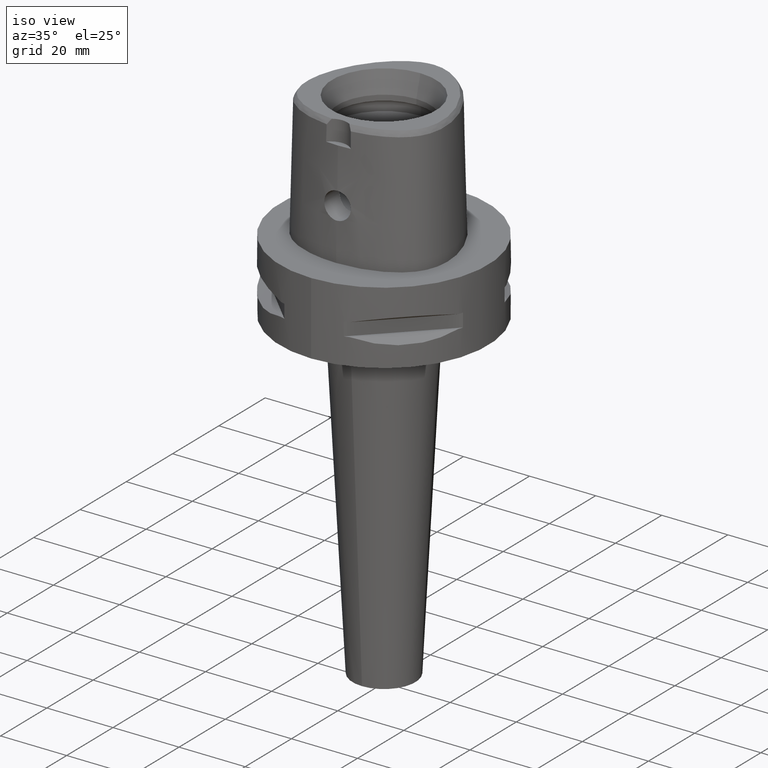
[diagram: clean part render]
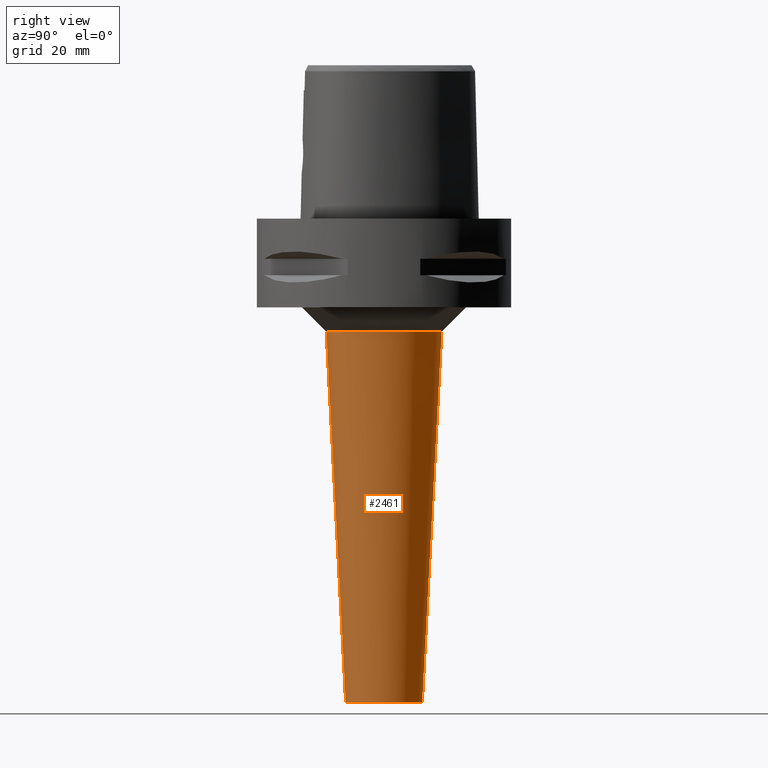
[diagram: tour spotlight — one face highlighted and labeled with its STEP entity id]
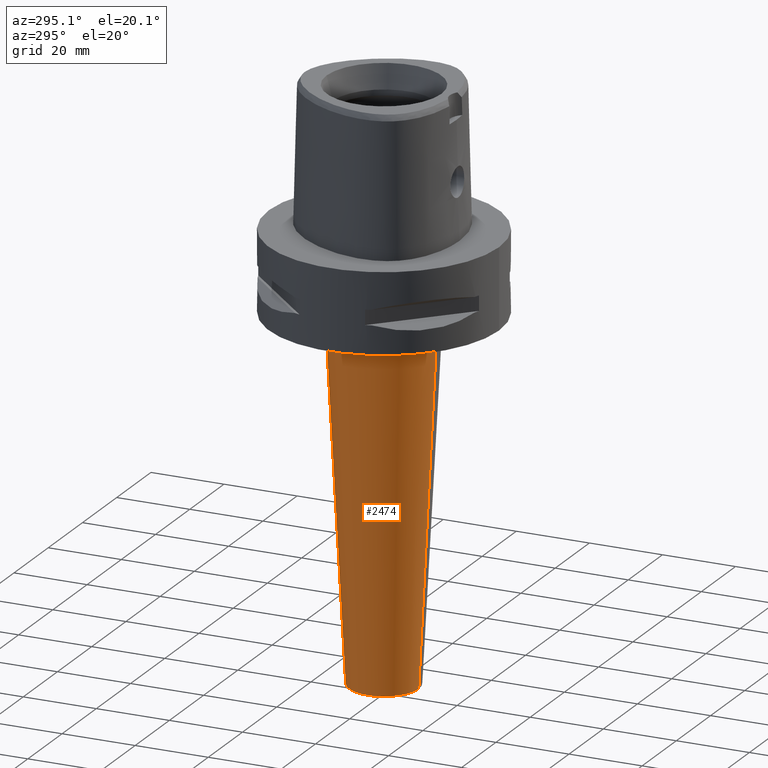
[diagram: tour spotlight — one face highlighted and labeled with its STEP entity id]
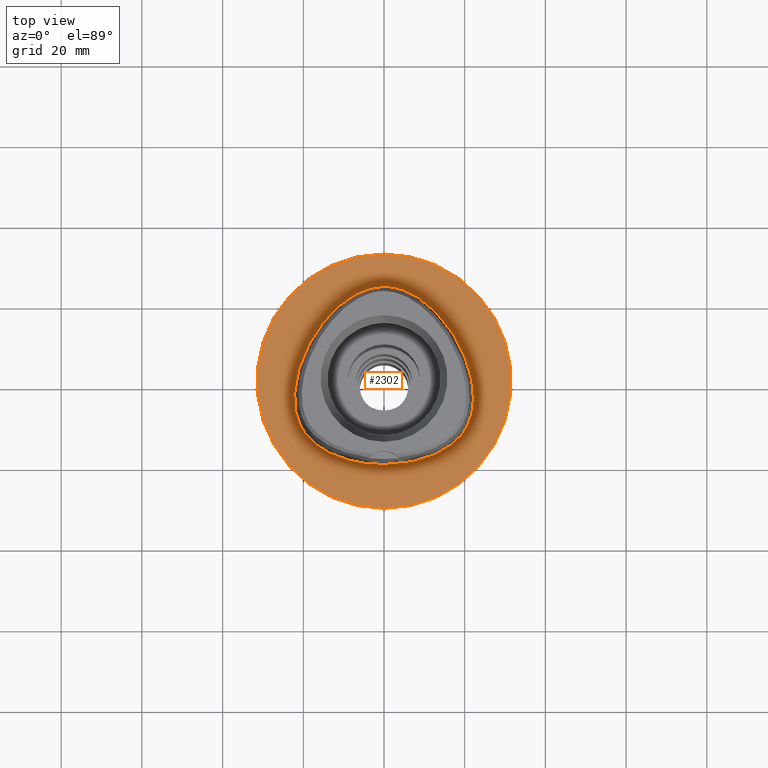
[diagram: tour spotlight — one face highlighted and labeled with its STEP entity id]
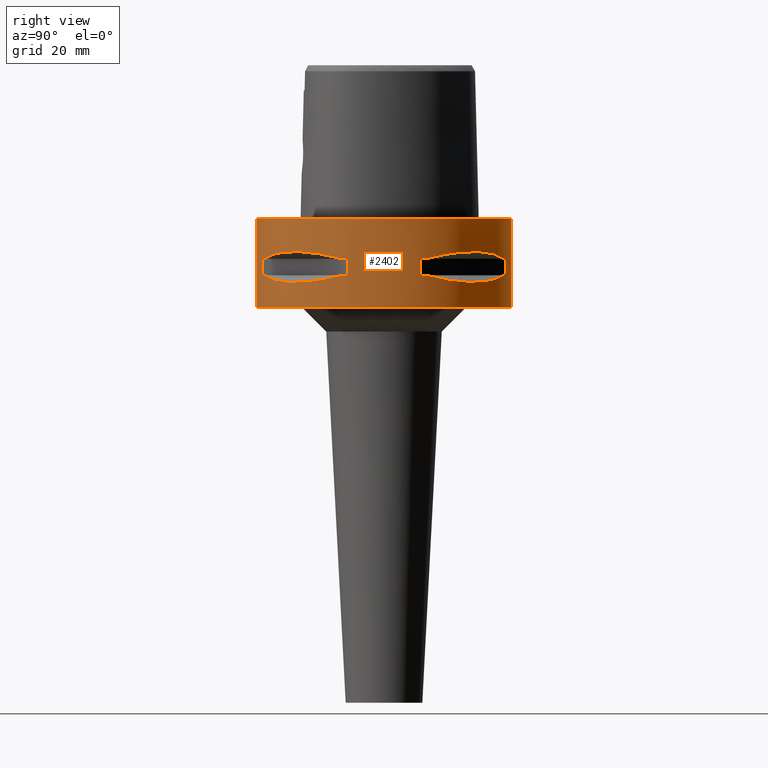
[diagram: tour spotlight — one face highlighted and labeled with its STEP entity id]
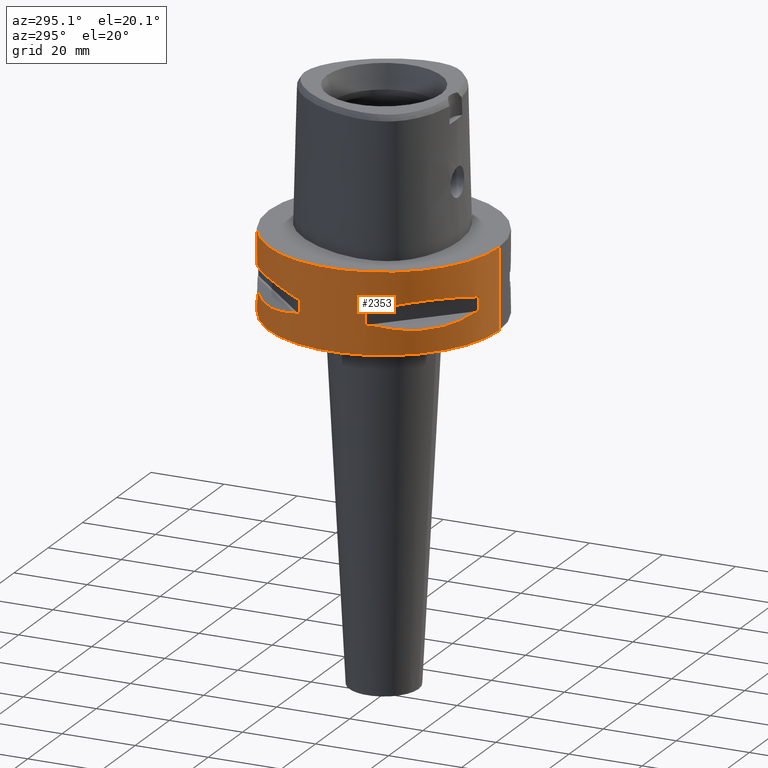
[diagram: tour spotlight — one face highlighted and labeled with its STEP entity id]
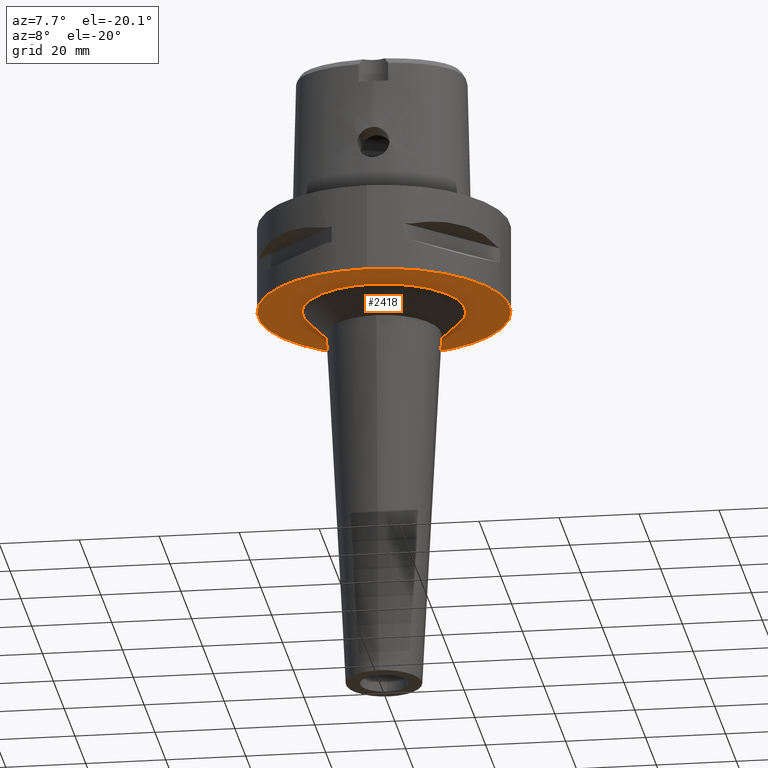
[diagram: tour spotlight — one face highlighted and labeled with its STEP entity id]
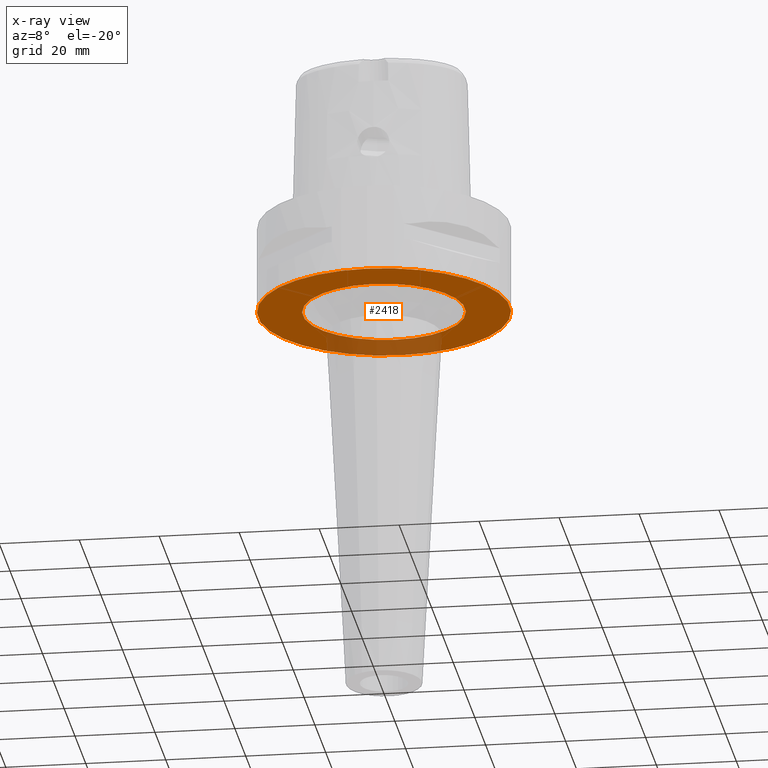
[diagram: x-ray of the same camera — body ghosted, this tour face saturated]
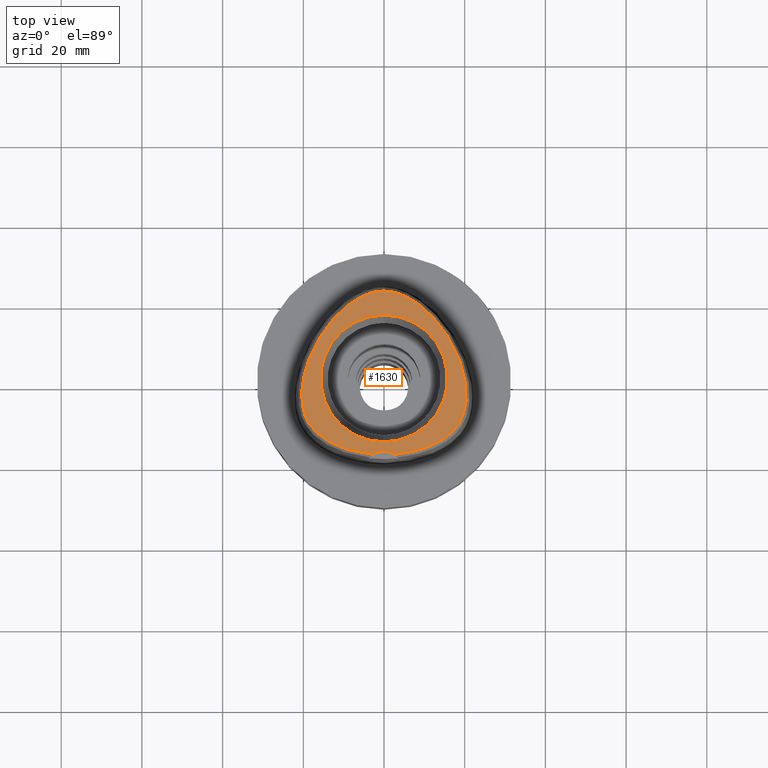
[diagram: tour spotlight — one face highlighted and labeled with its STEP entity id]
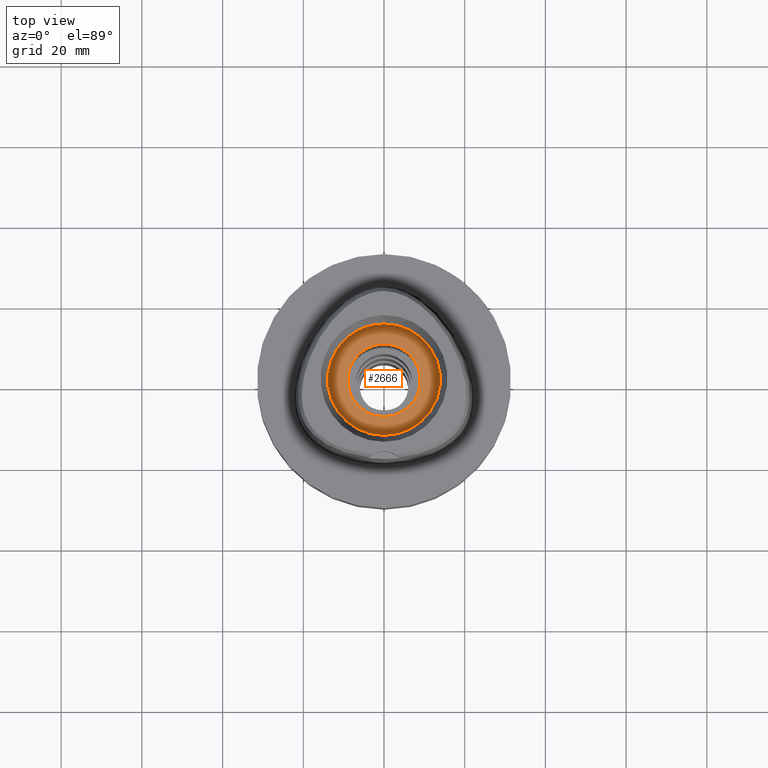
[diagram: tour spotlight — one face highlighted and labeled with its STEP entity id]
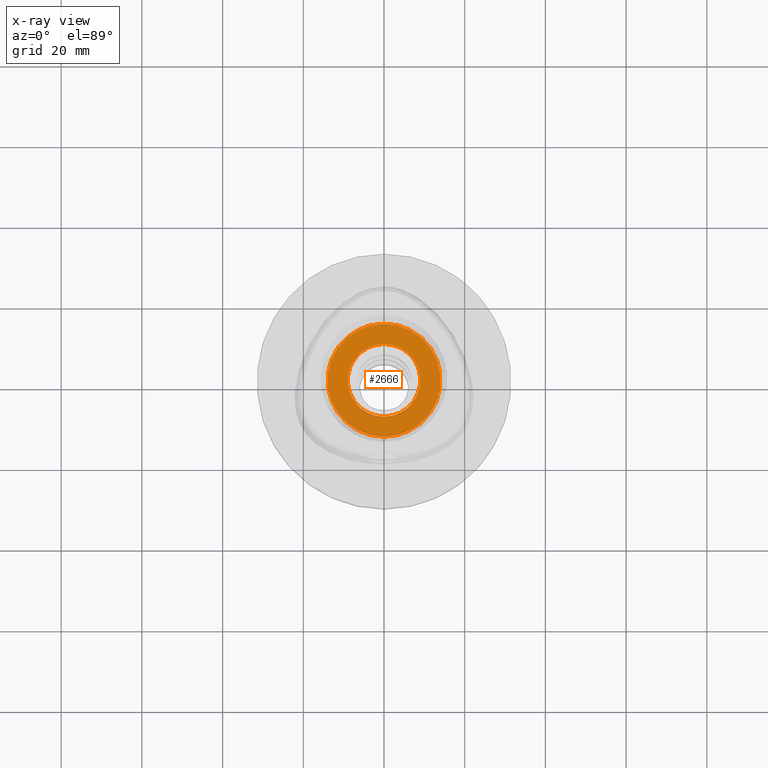
[diagram: x-ray of the same camera — body ghosted, this tour face saturated]
A machine part: a face-by-face anatomy tour. The part has 65 B-rep faces; the first image is the clean iso view, then the 8 largest visible faces are spotlighted one at a time (largest first), each with its STEP entity span.

Face 1 — right view, entity #2461. In plain terms, the highlighted conical surface has half-angle 3 deg.
Definition (entity closure, byte-faithful):
#596=DIRECTION('',(0.E0,-5.233595624294E-2,-9.986295347546E-1));
#597=VECTOR('',#596,9.212625583181E1);
#598=CARTESIAN_POINT('',(0.E0,1.432151569404E1,-2.8E1));
#599=LINE('',#598,#597);
#603=CARTESIAN_POINT('',(0.E0,0.E0,-2.8E1));
#604=DIRECTION('',(0.E0,0.E0,1.E0));
#605=DIRECTION('',(0.E0,-1.E0,0.E0));
#606=AXIS2_PLACEMENT_3D('',#603,#604,#605);
#611=DIRECTION('',(0.E0,5.233595624294E-2,-9.986295347546E-1));
#612=VECTOR('',#611,9.212625583181E1);
#613=CARTESIAN_POINT('',(0.E0,-1.432151569404E1,-2.8E1));
#614=LINE('',#613,#612);
#618=CARTESIAN_POINT('',(0.E0,0.E0,-1.2E2));
#619=DIRECTION('',(0.E0,0.E0,1.E0));
#620=DIRECTION('',(0.E0,-1.E0,0.E0));
#621=AXIS2_PLACEMENT_3D('',#618,#619,#620);
#1536=CARTESIAN_POINT('',(0.E0,1.432151569404E1,-2.8E1));
#1537=VERTEX_POINT('',#1536);
#1538=CARTESIAN_POINT('',(0.E0,-1.432151569404E1,-2.8E1));
#1539=VERTEX_POINT('',#1538);
#1540=CARTESIAN_POINT('',(0.E0,9.5E0,-1.2E2));
#1541=VERTEX_POINT('',#1540);
#1542=CARTESIAN_POINT('',(0.E0,-9.5E0,-1.2E2));
#1543=VERTEX_POINT('',#1542);
#2447=CARTESIAN_POINT('',(0.E0,0.E0,-7.4E1));
#2448=DIRECTION('',(0.E0,0.E0,1.E0));
#2449=DIRECTION('',(0.E0,1.E0,0.E0));
#2450=AXIS2_PLACEMENT_3D('',#2447,#2448,#2449);
#2451=CONICAL_SURFACE('',#2450,1.191075784702E1,3.E0);
#2453=ORIENTED_EDGE('',*,*,#2452,.T.);
#2455=ORIENTED_EDGE('',*,*,#2454,.F.);
#2457=ORIENTED_EDGE('',*,*,#2456,.F.);
#2458=ORIENTED_EDGE('',*,*,#2440,.T.);
#2459=EDGE_LOOP('',(#2453,#2455,#2457,#2458));
#2460=FACE_OUTER_BOUND('',#2459,.F.);
#607=CIRCLE('',#606,1.432151569404E1);
#622=CIRCLE('',#621,9.5E0);
#2440=EDGE_CURVE('',#1539,#1537,#607,.T.);
#2452=EDGE_CURVE('',#1537,#1541,#599,.T.);
#2454=EDGE_CURVE('',#1543,#1541,#622,.T.);
#2456=EDGE_CURVE('',#1539,#1543,#614,.T.);
#2461=ADVANCED_FACE('',(#2460),#2451,.T.);

Face 2 — auxiliary view, entity #2474. In plain terms, the highlighted conical surface has half-angle 3 deg.
Definition (entity closure, byte-faithful):
#581=CARTESIAN_POINT('',(0.E0,0.E0,-2.8E1));
#582=DIRECTION('',(0.E0,0.E0,-1.E0));
#583=DIRECTION('',(0.E0,-1.E0,0.E0));
#584=AXIS2_PLACEMENT_3D('',#581,#582,#583);
#596=DIRECTION('',(0.E0,-5.233595624294E-2,-9.986295347546E-1));
#597=VECTOR('',#596,9.212625583181E1);
#598=CARTESIAN_POINT('',(0.E0,1.432151569404E1,-2.8E1));
#599=LINE('',#598,#597);
#611=DIRECTION('',(0.E0,5.233595624294E-2,-9.986295347546E-1));
#612=VECTOR('',#611,9.212625583181E1);
#613=CARTESIAN_POINT('',(0.E0,-1.432151569404E1,-2.8E1));
#614=LINE('',#613,#612);
#626=CARTESIAN_POINT('',(0.E0,0.E0,-1.2E2));
#627=DIRECTION('',(0.E0,0.E0,1.E0));
#628=DIRECTION('',(0.E0,1.E0,0.E0));
#629=AXIS2_PLACEMENT_3D('',#626,#627,#628);
#1536=CARTESIAN_POINT('',(0.E0,1.432151569404E1,-2.8E1));
#1537=VERTEX_POINT('',#1536);
#1538=CARTESIAN_POINT('',(0.E0,-1.432151569404E1,-2.8E1));
#1539=VERTEX_POINT('',#1538);
#1540=CARTESIAN_POINT('',(0.E0,9.5E0,-1.2E2));
#1541=VERTEX_POINT('',#1540);
#1542=CARTESIAN_POINT('',(0.E0,-9.5E0,-1.2E2));
#1543=VERTEX_POINT('',#1542);
#2462=CARTESIAN_POINT('',(0.E0,0.E0,-7.4E1));
#2463=DIRECTION('',(0.E0,0.E0,1.E0));
#2464=DIRECTION('',(0.E0,1.E0,0.E0));
#2465=AXIS2_PLACEMENT_3D('',#2462,#2463,#2464);
#2466=CONICAL_SURFACE('',#2465,1.191075784702E1,3.E0);
#2467=ORIENTED_EDGE('',*,*,#2452,.F.);
#2468=ORIENTED_EDGE('',*,*,#2429,.F.);
#2469=ORIENTED_EDGE('',*,*,#2456,.T.);
#2471=ORIENTED_EDGE('',*,*,#2470,.F.);
#2472=EDGE_LOOP('',(#2467,#2468,#2469,#2471));
#2473=FACE_OUTER_BOUND('',#2472,.F.);
#585=CIRCLE('',#584,1.432151569404E1);
#630=CIRCLE('',#629,9.5E0);
#2429=EDGE_CURVE('',#1539,#1537,#585,.T.);
#2452=EDGE_CURVE('',#1537,#1541,#599,.T.);
#2456=EDGE_CURVE('',#1539,#1543,#614,.T.);
#2470=EDGE_CURVE('',#1541,#1543,#630,.T.);
#2474=ADVANCED_FACE('',(#2473),#2466,.T.);

Face 3 — top view, entity #2302. In plain terms, the highlighted planar face has unit normal (0, 0, -1).
Definition (entity closure, byte-faithful):
#284=CARTESIAN_POINT('',(0.E0,1.298125607096E-14,0.E0));
#285=DIRECTION('',(0.E0,0.E0,-1.E0));
#286=DIRECTION('',(0.E0,-1.E0,0.E0));
#287=AXIS2_PLACEMENT_3D('',#284,#285,#286);
#292=CARTESIAN_POINT('',(0.E0,1.298125607096E-14,0.E0));
#293=DIRECTION('',(0.E0,0.E0,-1.E0));
#294=DIRECTION('',(0.E0,1.E0,0.E0));
#295=AXIS2_PLACEMENT_3D('',#292,#293,#294);
#300=CARTESIAN_POINT('',(-7.554098338496E-12,-2.0675E1,5.802765675374E-14));
#301=CARTESIAN_POINT('',(9.423976488155E-1,-2.0675E1,5.802765675374E-14));
#302=CARTESIAN_POINT('',(2.793376130496E0,-2.060121898341E1,
-2.693072922207E-14));
#303=CARTESIAN_POINT('',(5.508073925153E0,-2.027764424331E1,0.E0));
#304=CARTESIAN_POINT('',(8.041996448639E0,-1.976541898218E1,0.E0));
#305=CARTESIAN_POINT('',(1.034737627933E1,-1.909911630638E1,0.E0));
#306=CARTESIAN_POINT('',(1.239658963969E1,-1.831453968020E1,0.E0));
#307=CARTESIAN_POINT('',(1.418694441822E1,-1.744434665725E1,0.E0));
#308=CARTESIAN_POINT('',(1.573225785650E1,-1.651379946435E1,0.E0));
#309=CARTESIAN_POINT('',(1.705313052344E1,-1.554151025429E1,0.E0));
#310=CARTESIAN_POINT('',(1.817388257844E1,-1.453902729280E1,0.E0));
#311=CARTESIAN_POINT('',(1.911891272271E1,-1.350974485467E1,0.E0));
#312=CARTESIAN_POINT('',(1.990146256093E1,-1.246481285694E1,0.E0));
#313=CARTESIAN_POINT('',(2.055285293415E1,-1.138079777910E1,0.E0));
#314=CARTESIAN_POINT('',(2.109925775097E1,-1.021351038987E1,0.E0));
#315=CARTESIAN_POINT('',(2.155091393640E1,-8.925976888341E0,0.E0));
#316=CARTESIAN_POINT('',(2.189689616524E1,-7.502520528071E0,0.E0));
#317=CARTESIAN_POINT('',(2.212256787027E1,-5.926491443589E0,0.E0));
#318=CARTESIAN_POINT('',(2.220771735646E1,-4.181470985909E0,0.E0));
#319=CARTESIAN_POINT('',(2.212713249782E1,-2.255944587063E0,0.E0));
#320=CARTESIAN_POINT('',(2.185240504158E1,-1.472618446542E-1,0.E0));
#321=CARTESIAN_POINT('',(2.135541226563E1,2.132648369099E0,0.E0));
#322=CARTESIAN_POINT('',(2.061444907364E1,4.550450910742E0,0.E0));
#323=CARTESIAN_POINT('',(1.962119436316E1,7.049507425535E0,0.E0));
#324=CARTESIAN_POINT('',(1.838889529103E1,9.549313604088E0,0.E0));
#325=CARTESIAN_POINT('',(1.695113881691E1,1.196337926030E1,0.E0));
#326=CARTESIAN_POINT('',(1.535472059642E1,1.421672847215E1,0.E0));
#327=CARTESIAN_POINT('',(1.366124595007E1,1.624188482830E1,0.E0));
#328=CARTESIAN_POINT('',(1.193203164444E1,1.799717625796E1,0.E0));
#329=CARTESIAN_POINT('',(1.021541912520E1,1.947089059358E1,0.E0));
#330=CARTESIAN_POINT('',(8.546165491836E0,2.067136251763E1,0.E0));
#331=CARTESIAN_POINT('',(6.943755701445E0,2.162065608947E1,0.E0));
#332=CARTESIAN_POINT('',(5.416271680727E0,2.234588874686E1,0.E0));
#333=CARTESIAN_POINT('',(3.963833922459E0,2.287421882732E1,0.E0));
#334=CARTESIAN_POINT('',(2.580913585919E0,2.322977851709E1,0.E0));
#335=CARTESIAN_POINT('',(1.261650265957E0,2.343215126304E1,
-2.559106284495E-14));
#336=CARTESIAN_POINT('',(4.145894550214E-1,2.347499999999E1,
5.514107688972E-14));
#337=CARTESIAN_POINT('',(4.563156641447E-11,2.347499999999E1,
5.514107688972E-14));
#342=CARTESIAN_POINT('',(4.563156641447E-11,2.347499999999E1,
5.514107688972E-14));
#343=CARTESIAN_POINT('',(-4.146852565207E-1,2.347499999999E1,
5.514107688972E-14));
#344=CARTESIAN_POINT('',(-1.261915149561E0,2.343213451227E1,
-2.559106284495E-14));
#345=CARTESIAN_POINT('',(-2.581460452462E0,2.322967044429E1,0.E0));
#346=CARTESIAN_POINT('',(-3.964403221928E0,2.287404406542E1,0.E0));
#347=CARTESIAN_POINT('',(-5.417034934790E0,2.234557740741E1,0.E0));
#348=CARTESIAN_POINT('',(-6.944801218035E0,2.162011250783E1,0.E0));
#349=CARTESIAN_POINT('',(-8.547637702665E0,2.067041451708E1,0.E0));
#350=CARTESIAN_POINT('',(-1.021725188597E1,1.946946503500E1,0.E0));
#351=CARTESIAN_POINT('',(-1.193424410327E1,1.799512566976E1,0.E0));
#352=CARTESIAN_POINT('',(-1.366368346013E1,1.623921716908E1,0.E0));
#353=CARTESIAN_POINT('',(-1.535729558670E1,1.421339154148E1,0.E0));
#354=CARTESIAN_POINT('',(-1.695352052941E1,1.195973010079E1,0.E0));
#355=CARTESIAN_POINT('',(-1.839120765518E1,9.545070948090E0,0.E0));
#356=CARTESIAN_POINT('',(-1.962307345157E1,7.045259246555E0,0.E0));
#357=CARTESIAN_POINT('',(-2.061579824793E1,4.546574757563E0,0.E0));
#358=CARTESIAN_POINT('',(-2.135626431495E1,2.129350844778E0,0.E0));
#359=CARTESIAN_POINT('',(-2.185285452040E1,-1.499599148027E-1,0.E0));
#360=CARTESIAN_POINT('',(-2.212727618345E1,-2.257747990068E0,0.E0));
#361=CARTESIAN_POINT('',(-2.220770549127E1,-4.183060399524E0,0.E0));
#362=CARTESIAN_POINT('',(-2.212245961432E1,-5.927659577005E0,0.E0));
#363=CARTESIAN_POINT('',(-2.189663652646E1,-7.503783103471E0,0.E0));
#364=CARTESIAN_POINT('',(-2.155071218654E1,-8.926832611984E0,0.E0));
#365=CARTESIAN_POINT('',(-2.109812849038E1,-1.021628808504E1,0.E0));
#366=CARTESIAN_POINT('',(-2.055277033994E1,-1.138063298656E1,0.E0));
#367=CARTESIAN_POINT('',(-1.990340162624E1,-1.246179278733E1,0.E0));
#368=CARTESIAN_POINT('',(-1.912185559762E1,-1.350622775472E1,0.E0));
#369=CARTESIAN_POINT('',(-1.817671397480E1,-1.453624124549E1,0.E0));
#370=CARTESIAN_POINT('',(-1.705680612492E1,-1.553852109048E1,0.E0));
#371=CARTESIAN_POINT('',(-1.573604956120E1,-1.651128824165E1,0.E0));
#372=CARTESIAN_POINT('',(-1.419106097246E1,-1.744213430450E1,0.E0));
#373=CARTESIAN_POINT('',(-1.240026832212E1,-1.831297475591E1,0.E0));
#374=CARTESIAN_POINT('',(-1.035075458277E1,-1.909801402975E1,0.E0));
#375=CARTESIAN_POINT('',(-8.044393403476E0,-1.976486427995E1,0.E0));
#376=CARTESIAN_POINT('',(-5.509742625065E0,-2.027740112967E1,0.E0));
#377=CARTESIAN_POINT('',(-2.794080716861E0,-2.060118766449E1,
-2.693072922207E-14));
#378=CARTESIAN_POINT('',(-9.426230636249E-1,-2.0675E1,5.802765675374E-14));
#379=CARTESIAN_POINT('',(-7.554098338496E-12,-2.0675E1,5.802765675374E-14));
#1466=VERTEX_POINT('',#342);
#1467=VERTEX_POINT('',#379);
#1472=CARTESIAN_POINT('',(0.E0,-3.15E1,0.E0));
#1473=CARTESIAN_POINT('',(0.E0,3.15E1,0.E0));
#1474=VERTEX_POINT('',#1472);
#1475=VERTEX_POINT('',#1473);
#2286=CARTESIAN_POINT('',(0.E0,1.224646799147E-14,0.E0));
#2287=DIRECTION('',(0.E0,0.E0,-1.E0));
#2288=DIRECTION('',(0.E0,-1.E0,0.E0));
#2289=AXIS2_PLACEMENT_3D('',#2286,#2287,#2288);
#2290=PLANE('',#2289);
#2292=ORIENTED_EDGE('',*,*,#2291,.T.);
#2294=ORIENTED_EDGE('',*,*,#2293,.T.);
#2295=EDGE_LOOP('',(#2292,#2294));
#2296=FACE_OUTER_BOUND('',#2295,.F.);
#2298=ORIENTED_EDGE('',*,*,#2297,.T.);
#2299=ORIENTED_EDGE('',*,*,#2269,.T.);
#2300=EDGE_LOOP('',(#2298,#2299));
#2301=FACE_BOUND('',#2300,.F.);
#288=CIRCLE('',#287,3.15E1);
#296=CIRCLE('',#295,3.15E1);
#338=B_SPLINE_CURVE_WITH_KNOTS('',3,(#300,#301,#302,#303,#304,#305,#306,#307,
#308,#309,#310,#311,#312,#313,#314,#315,#316,#317,#318,#319,#320,#321,#322,#323,
#324,#325,#326,#327,#328,#329,#330,#331,#332,#333,#334,#335,#336,#337),
.UNSPECIFIED.,.F.,.F.,(4,1,1,1,1,1,1,1,1,1,1,1,1,1,1,1,1,1,1,1,1,1,1,1,1,1,1,1,
1,1,1,1,1,1,1,4),(0.E0,2.857142857143E-2,5.714285714286E-2,8.571428571429E-2,
1.142857142857E-1,1.428571428571E-1,1.714285714286E-1,2.E-1,2.285714285714E-1,
2.571428571429E-1,2.857142857143E-1,3.142857142857E-1,3.428571428571E-1,
3.714285714286E-1,4.E-1,4.285714285714E-1,4.571428571429E-1,4.857142857143E-1,
5.142857142857E-1,5.428571428571E-1,5.714285714286E-1,6.E-1,6.285714285714E-1,
6.571428571429E-1,6.857142857143E-1,7.142857142857E-1,7.428571428571E-1,
7.714285714286E-1,8.E-1,8.285714285714E-1,8.571428571429E-1,8.857142857143E-1,
9.142857142857E-1,9.428571428571E-1,9.714285714286E-1,1.E0),.UNSPECIFIED.);
#380=B_SPLINE_CURVE_WITH_KNOTS('',3,(#342,#343,#344,#345,#346,#347,#348,#349,
#350,#351,#352,#353,#354,#355,#356,#357,#358,#359,#360,#361,#362,#363,#364,#365,
#366,#367,#368,#369,#370,#371,#372,#373,#374,#375,#376,#377,#378,#379),
.UNSPECIFIED.,.F.,.F.,(4,1,1,1,1,1,1,1,1,1,1,1,1,1,1,1,1,1,1,1,1,1,1,1,1,1,1,1,
1,1,1,1,1,1,1,4),(0.E0,2.857142857143E-2,5.714285714286E-2,8.571428571429E-2,
1.142857142857E-1,1.428571428571E-1,1.714285714286E-1,2.E-1,2.285714285714E-1,
2.571428571429E-1,2.857142857143E-1,3.142857142857E-1,3.428571428571E-1,
3.714285714286E-1,4.E-1,4.285714285714E-1,4.571428571429E-1,4.857142857143E-1,
5.142857142857E-1,5.428571428571E-1,5.714285714286E-1,6.E-1,6.285714285714E-1,
6.571428571429E-1,6.857142857143E-1,7.142857142857E-1,7.428571428571E-1,
7.714285714286E-1,8.E-1,8.285714285714E-1,8.571428571429E-1,8.857142857143E-1,
9.142857142857E-1,9.428571428571E-1,9.714285714286E-1,1.E0),.UNSPECIFIED.);
#2269=EDGE_CURVE('',#1466,#1467,#380,.T.);
#2291=EDGE_CURVE('',#1474,#1475,#288,.T.);
#2293=EDGE_CURVE('',#1475,#1474,#296,.T.);
#2297=EDGE_CURVE('',#1467,#1466,#338,.T.);
#2302=ADVANCED_FACE('',(#2296,#2301),#2290,.F.);

Face 4 — right view, entity #2402. In plain terms, the highlighted cylindrical surface (partial cylindrical patch) has radius 31.5 mm, axis along (0, 0, -1).
Definition (entity closure, byte-faithful):
#292=CARTESIAN_POINT('',(0.E0,1.298125607096E-14,0.E0));
#293=DIRECTION('',(0.E0,0.E0,-1.E0));
#294=DIRECTION('',(0.E0,1.E0,0.E0));
#295=AXIS2_PLACEMENT_3D('',#292,#293,#294);
#384=DIRECTION('',(0.E0,0.E0,-1.E0));
#385=VECTOR('',#384,2.2E1);
#386=CARTESIAN_POINT('',(0.E0,-3.15E1,0.E0));
#387=LINE('',#386,#385);
#463=DIRECTION('',(0.E0,0.E0,-1.E0));
#464=VECTOR('',#463,2.2E1);
#465=CARTESIAN_POINT('',(0.E0,3.15E1,0.E0));
#466=LINE('',#465,#464);
#470=CARTESIAN_POINT('',(2.971690375018E1,-1.044775724750E1,-9.950000000001E0));
#471=CARTESIAN_POINT('',(2.888151197365E1,-1.282388988809E1,-9.320995176200E0));
#472=CARTESIAN_POINT('',(2.674739463903E1,-1.711282138769E1,-8.441295977077E0));
#473=CARTESIAN_POINT('',(2.244574140438E1,-2.244574140438E1,-8.020283076297E0));
#474=CARTESIAN_POINT('',(1.711282138769E1,-2.674739463903E1,-8.441295977077E0));
#475=CARTESIAN_POINT('',(1.282388988809E1,-2.888151197365E1,-9.320995176200E0));
#476=CARTESIAN_POINT('',(1.044775724750E1,-2.971690375018E1,-9.950000000001E0));
#481=DIRECTION('',(0.E0,0.E0,-1.E0));
#482=VECTOR('',#481,4.1E0);
#483=CARTESIAN_POINT('',(8.981198972017E0,-3.019251670572E1,-9.95E0));
#484=LINE('',#483,#482);
#488=CARTESIAN_POINT('',(1.044775724750E1,-2.971690375018E1,-1.405E1));
#489=CARTESIAN_POINT('',(1.282388988809E1,-2.888151197365E1,-1.467900482380E1));
#490=CARTESIAN_POINT('',(1.711282138769E1,-2.674739463903E1,-1.555870402293E1));
#491=CARTESIAN_POINT('',(2.244574140438E1,-2.244574140438E1,-1.597971692371E1));
#492=CARTESIAN_POINT('',(2.674739463903E1,-1.711282138769E1,-1.555870402293E1));
#493=CARTESIAN_POINT('',(2.888151197365E1,-1.282388988809E1,-1.467900482380E1));
#494=CARTESIAN_POINT('',(2.971690375018E1,-1.044775724750E1,-1.405E1));
#499=DIRECTION('',(0.E0,0.E0,1.E0));
#500=VECTOR('',#499,4.1E0);
#501=CARTESIAN_POINT('',(3.019251670572E1,-8.981198972017E0,-1.405E1));
#502=LINE('',#501,#500);
#506=CARTESIAN_POINT('',(1.044775724750E1,2.971690375018E1,-9.950000000001E0));
#507=CARTESIAN_POINT('',(1.282388988809E1,2.888151197365E1,-9.320995176200E0));
#508=CARTESIAN_POINT('',(1.711282138769E1,2.674739463903E1,-8.441295977077E0));
#509=CARTESIAN_POINT('',(2.244574140438E1,2.244574140438E1,-8.020283076297E0));
#510=CARTESIAN_POINT('',(2.674739463903E1,1.711282138769E1,-8.441295977077E0));
#511=CARTESIAN_POINT('',(2.888151197365E1,1.282388988809E1,-9.320995176200E0));
#512=CARTESIAN_POINT('',(2.971690375018E1,1.044775724750E1,-9.950000000001E0));
#517=DIRECTION('',(0.E0,0.E0,-1.E0));
#518=VECTOR('',#517,4.1E0);
#519=CARTESIAN_POINT('',(3.019251670572E1,8.981198972017E0,-9.95E0));
#520=LINE('',#519,#518);
#524=CARTESIAN_POINT('',(2.971690375018E1,1.044775724750E1,-1.405E1));
#525=CARTESIAN_POINT('',(2.888151197365E1,1.282388988809E1,-1.467900482380E1));
#526=CARTESIAN_POINT('',(2.674739463903E1,1.711282138769E1,-1.555870402293E1));
#527=CARTESIAN_POINT('',(2.244574140438E1,2.244574140438E1,-1.597971692371E1));
#528=CARTESIAN_POINT('',(1.711282138769E1,2.674739463903E1,-1.555870402293E1));
#529=CARTESIAN_POINT('',(1.282388988809E1,2.888151197365E1,-1.467900482380E1));
#530=CARTESIAN_POINT('',(1.044775724750E1,2.971690375018E1,-1.405E1));
#535=DIRECTION('',(0.E0,0.E0,1.E0));
#536=VECTOR('',#535,4.1E0);
#537=CARTESIAN_POINT('',(8.981198972017E0,3.019251670572E1,-1.405E1));
#538=LINE('',#537,#536);
#542=CARTESIAN_POINT('',(0.E0,1.298125607096E-14,-2.2E1));
#543=DIRECTION('',(0.E0,0.E0,1.E0));
#544=DIRECTION('',(0.E0,-1.E0,0.E0));
#545=AXIS2_PLACEMENT_3D('',#542,#543,#544);
#1206=CARTESIAN_POINT('',(0.E0,1.298125607096E-14,-9.95E0));
#1207=DIRECTION('',(0.E0,0.E0,1.E0));
#1208=DIRECTION('',(9.433937698469E-1,-3.316748332541E-1,0.E0));
#1209=AXIS2_PLACEMENT_3D('',#1206,#1207,#1208);
#1214=CARTESIAN_POINT('',(0.E0,1.298125607096E-14,-9.95E0));
#1215=DIRECTION('',(0.E0,0.E0,1.E0));
#1216=DIRECTION('',(2.851174276832E-1,-9.584925938323E-1,0.E0));
#1217=AXIS2_PLACEMENT_3D('',#1214,#1215,#1216);
#1236=CARTESIAN_POINT('',(0.E0,1.298125607096E-14,-1.405E1));
#1237=DIRECTION('',(0.E0,0.E0,-1.E0));
#1238=DIRECTION('',(9.584925938323E-1,-2.851174276832E-1,0.E0));
#1239=AXIS2_PLACEMENT_3D('',#1236,#1237,#1238);
#1244=CARTESIAN_POINT('',(0.E0,1.298125607096E-14,-1.405E1));
#1245=DIRECTION('',(0.E0,0.E0,-1.E0));
#1246=DIRECTION('',(3.316748332541E-1,-9.433937698469E-1,0.E0));
#1247=AXIS2_PLACEMENT_3D('',#1244,#1245,#1246);
#1266=CARTESIAN_POINT('',(0.E0,1.298125607096E-14,-9.95E0));
#1267=DIRECTION('',(0.E0,0.E0,1.E0));
#1268=DIRECTION('',(3.316748332541E-1,9.433937698469E-1,0.E0));
#1269=AXIS2_PLACEMENT_3D('',#1266,#1267,#1268);
#1274=CARTESIAN_POINT('',(0.E0,1.298125607096E-14,-9.95E0));
#1275=DIRECTION('',(0.E0,0.E0,1.E0));
#1276=DIRECTION('',(9.584925938323E-1,2.851174276832E-1,0.E0));
#1277=AXIS2_PLACEMENT_3D('',#1274,#1275,#1276);
#1296=CARTESIAN_POINT('',(0.E0,1.298125607096E-14,-1.405E1));
#1297=DIRECTION('',(0.E0,0.E0,-1.E0));
#1298=DIRECTION('',(2.851174276832E-1,9.584925938323E-1,0.E0));
#1299=AXIS2_PLACEMENT_3D('',#1296,#1297,#1298);
#1304=CARTESIAN_POINT('',(0.E0,1.298125607096E-14,-1.405E1));
#1305=DIRECTION('',(0.E0,0.E0,-1.E0));
#1306=DIRECTION('',(9.433937698469E-1,3.316748332541E-1,0.E0));
#1307=AXIS2_PLACEMENT_3D('',#1304,#1305,#1306);
#1472=CARTESIAN_POINT('',(0.E0,-3.15E1,0.E0));
#1473=CARTESIAN_POINT('',(0.E0,3.15E1,0.E0));
#1474=VERTEX_POINT('',#1472);
#1475=VERTEX_POINT('',#1473);
#1476=CARTESIAN_POINT('',(0.E0,3.15E1,-2.2E1));
#1477=VERTEX_POINT('',#1476);
#1478=CARTESIAN_POINT('',(0.E0,-3.15E1,-2.2E1));
#1479=VERTEX_POINT('',#1478);
#1506=VERTEX_POINT('',#470);
#1507=VERTEX_POINT('',#476);
#1508=CARTESIAN_POINT('',(8.981198972020E0,-3.019251670572E1,-9.95E0));
#1509=VERTEX_POINT('',#1508);
#1510=CARTESIAN_POINT('',(8.981198972017E0,-3.019251670572E1,-1.405E1));
#1511=VERTEX_POINT('',#1510);
#1512=CARTESIAN_POINT('',(1.044775724750E1,-2.971690375018E1,-1.405E1));
#1513=VERTEX_POINT('',#1512);
#1514=VERTEX_POINT('',#494);
#1515=CARTESIAN_POINT('',(3.019251670572E1,-8.981198972020E0,-1.405E1));
#1516=VERTEX_POINT('',#1515);
#1517=CARTESIAN_POINT('',(3.019251670572E1,-8.981198972017E0,-9.95E0));
#1518=VERTEX_POINT('',#1517);
#1519=VERTEX_POINT('',#506);
#1520=VERTEX_POINT('',#512);
#1521=CARTESIAN_POINT('',(3.019251670572E1,8.981198972020E0,-9.95E0));
#1522=VERTEX_POINT('',#1521);
#1523=CARTESIAN_POINT('',(3.019251670572E1,8.981198972017E0,-1.405E1));
#1524=VERTEX_POINT('',#1523);
#1525=CARTESIAN_POINT('',(2.971690375018E1,1.044775724750E1,-1.405E1));
#1526=VERTEX_POINT('',#1525);
#1527=VERTEX_POINT('',#530);
#1528=CARTESIAN_POINT('',(8.981198972020E0,3.019251670572E1,-1.405E1));
#1529=VERTEX_POINT('',#1528);
#1530=CARTESIAN_POINT('',(8.981198972017E0,3.019251670572E1,-9.95E0));
#1531=VERTEX_POINT('',#1530);
#2354=CARTESIAN_POINT('',(0.E0,1.298125607096E-14,6.E0));
#2355=DIRECTION('',(0.E0,0.E0,-1.E0));
#2356=DIRECTION('',(0.E0,-1.E0,0.E0));
#2357=AXIS2_PLACEMENT_3D('',#2354,#2355,#2356);
#2358=CYLINDRICAL_SURFACE('',#2357,3.15E1);
#2359=ORIENTED_EDGE('',*,*,#2308,.T.);
#2361=ORIENTED_EDGE('',*,*,#2360,.F.);
#2362=ORIENTED_EDGE('',*,*,#2311,.F.);
#2363=ORIENTED_EDGE('',*,*,#2293,.F.);
#2364=EDGE_LOOP('',(#2359,#2361,#2362,#2363));
#2365=FACE_OUTER_BOUND('',#2364,.F.);
#2367=ORIENTED_EDGE('',*,*,#2366,.T.);
#2369=ORIENTED_EDGE('',*,*,#2368,.F.);
#2371=ORIENTED_EDGE('',*,*,#2370,.T.);
#2373=ORIENTED_EDGE('',*,*,#2372,.F.);
#2375=ORIENTED_EDGE('',*,*,#2374,.T.);
#2377=ORIENTED_EDGE('',*,*,#2376,.F.);
#2379=ORIENTED_EDGE('',*,*,#2378,.T.);
#2381=ORIENTED_EDGE('',*,*,#2380,.F.);
#2382=EDGE_LOOP('',(#2367,#2369,#2371,#2373,#2375,#2377,#2379,#2381));
#2383=FACE_BOUND('',#2382,.F.);
#2385=ORIENTED_EDGE('',*,*,#2384,.T.);
#2387=ORIENTED_EDGE('',*,*,#2386,.F.);
#2389=ORIENTED_EDGE('',*,*,#2388,.T.);
#2391=ORIENTED_EDGE('',*,*,#2390,.F.);
#2393=ORIENTED_EDGE('',*,*,#2392,.T.);
#2395=ORIENTED_EDGE('',*,*,#2394,.F.);
#2397=ORIENTED_EDGE('',*,*,#2396,.T.);
#2399=ORIENTED_EDGE('',*,*,#2398,.F.);
#2400=EDGE_LOOP('',(#2385,#2387,#2389,#2391,#2393,#2395,#2397,#2399));
#2401=FACE_BOUND('',#2400,.F.);
#296=CIRCLE('',#295,3.15E1);
#477=B_SPLINE_CURVE_WITH_KNOTS('',3,(#470,#471,#472,#473,#474,#475,#476),
.UNSPECIFIED.,.F.,.F.,(4,1,1,1,4),(0.E0,2.5E-1,5.E-1,7.5E-1,1.E0),
.UNSPECIFIED.);
#495=B_SPLINE_CURVE_WITH_KNOTS('',3,(#488,#489,#490,#491,#492,#493,#494),
.UNSPECIFIED.,.F.,.F.,(4,1,1,1,4),(0.E0,2.5E-1,5.E-1,7.5E-1,1.E0),
.UNSPECIFIED.);
#513=B_SPLINE_CURVE_WITH_KNOTS('',3,(#506,#507,#508,#509,#510,#511,#512),
.UNSPECIFIED.,.F.,.F.,(4,1,1,1,4),(0.E0,2.5E-1,5.E-1,7.5E-1,1.E0),
.UNSPECIFIED.);
#531=B_SPLINE_CURVE_WITH_KNOTS('',3,(#524,#525,#526,#527,#528,#529,#530),
.UNSPECIFIED.,.F.,.F.,(4,1,1,1,4),(0.E0,2.5E-1,5.E-1,7.5E-1,1.E0),
.UNSPECIFIED.);
#546=CIRCLE('',#545,3.15E1);
#1210=CIRCLE('',#1209,3.15E1);
#1218=CIRCLE('',#1217,3.15E1);
#1240=CIRCLE('',#1239,3.15E1);
#1248=CIRCLE('',#1247,3.15E1);
#1270=CIRCLE('',#1269,3.15E1);
#1278=CIRCLE('',#1277,3.15E1);
#1300=CIRCLE('',#1299,3.15E1);
#1308=CIRCLE('',#1307,3.15E1);
#2293=EDGE_CURVE('',#1475,#1474,#296,.T.);
#2308=EDGE_CURVE('',#1475,#1477,#466,.T.);
#2311=EDGE_CURVE('',#1474,#1479,#387,.T.);
#2360=EDGE_CURVE('',#1479,#1477,#546,.T.);
#2366=EDGE_CURVE('',#1506,#1507,#477,.T.);
#2368=EDGE_CURVE('',#1509,#1507,#1218,.T.);
#2370=EDGE_CURVE('',#1509,#1511,#484,.T.);
#2372=EDGE_CURVE('',#1513,#1511,#1248,.T.);
#2374=EDGE_CURVE('',#1513,#1514,#495,.T.);
#2376=EDGE_CURVE('',#1516,#1514,#1240,.T.);
#2378=EDGE_CURVE('',#1516,#1518,#502,.T.);
#2380=EDGE_CURVE('',#1506,#1518,#1210,.T.);
#2384=EDGE_CURVE('',#1519,#1520,#513,.T.);
#2386=EDGE_CURVE('',#1522,#1520,#1278,.T.);
#2388=EDGE_CURVE('',#1522,#1524,#520,.T.);
#2390=EDGE_CURVE('',#1526,#1524,#1308,.T.);
#2392=EDGE_CURVE('',#1526,#1527,#531,.T.);
#2394=EDGE_CURVE('',#1529,#1527,#1300,.T.);
#2396=EDGE_CURVE('',#1529,#1531,#538,.T.);
#2398=EDGE_CURVE('',#1519,#1531,#1270,.T.);
#2402=ADVANCED_FACE('',(#2365,#2383,#2401),#2358,.T.);

Face 5 — auxiliary view, entity #2353. In plain terms, the highlighted cylindrical surface (partial cylindrical patch) has radius 31.5 mm, axis along (0, 0, -1).
Definition (entity closure, byte-faithful):
#284=CARTESIAN_POINT('',(0.E0,1.298125607096E-14,0.E0));
#285=DIRECTION('',(0.E0,0.E0,-1.E0));
#286=DIRECTION('',(0.E0,-1.E0,0.E0));
#287=AXIS2_PLACEMENT_3D('',#284,#285,#286);
#384=DIRECTION('',(0.E0,0.E0,-1.E0));
#385=VECTOR('',#384,2.2E1);
#386=CARTESIAN_POINT('',(0.E0,-3.15E1,0.E0));
#387=LINE('',#386,#385);
#391=CARTESIAN_POINT('',(-2.971690375018E1,1.044775724750E1,-9.950000000001E0));
#392=CARTESIAN_POINT('',(-2.888151197365E1,1.282388988809E1,-9.320995176200E0));
#393=CARTESIAN_POINT('',(-2.674739463903E1,1.711282138769E1,-8.441295977077E0));
#394=CARTESIAN_POINT('',(-2.244574140438E1,2.244574140438E1,-8.020283076297E0));
#395=CARTESIAN_POINT('',(-1.711282138769E1,2.674739463903E1,-8.441295977077E0));
#396=CARTESIAN_POINT('',(-1.282388988809E1,2.888151197365E1,-9.320995176200E0));
#397=CARTESIAN_POINT('',(-1.044775724750E1,2.971690375018E1,-9.950000000001E0));
#402=DIRECTION('',(0.E0,0.E0,-1.E0));
#403=VECTOR('',#402,4.1E0);
#404=CARTESIAN_POINT('',(-8.981198972017E0,3.019251670572E1,-9.95E0));
#405=LINE('',#404,#403);
#409=CARTESIAN_POINT('',(-1.044775724750E1,2.971690375018E1,-1.405E1));
#410=CARTESIAN_POINT('',(-1.282388988809E1,2.888151197365E1,-1.467900482380E1));
#411=CARTESIAN_POINT('',(-1.711282138769E1,2.674739463903E1,-1.555870402293E1));
#412=CARTESIAN_POINT('',(-2.244574140438E1,2.244574140438E1,-1.597971692371E1));
#413=CARTESIAN_POINT('',(-2.674739463903E1,1.711282138769E1,-1.555870402293E1));
#414=CARTESIAN_POINT('',(-2.888151197365E1,1.282388988809E1,-1.467900482380E1));
#415=CARTESIAN_POINT('',(-2.971690375018E1,1.044775724750E1,-1.405E1));
#420=DIRECTION('',(0.E0,0.E0,1.E0));
#421=VECTOR('',#420,4.1E0);
#422=CARTESIAN_POINT('',(-3.019251670572E1,8.981198972017E0,-1.405E1));
#423=LINE('',#422,#421);
#427=CARTESIAN_POINT('',(-1.044775724750E1,-2.971690375018E1,
-9.950000000001E0));
#428=CARTESIAN_POINT('',(-1.282388988809E1,-2.888151197365E1,
-9.320995176200E0));
#429=CARTESIAN_POINT('',(-1.711282138769E1,-2.674739463903E1,
-8.441295977077E0));
#430=CARTESIAN_POINT('',(-2.244574140438E1,-2.244574140438E1,
-8.020283076297E0));
#431=CARTESIAN_POINT('',(-2.674739463903E1,-1.711282138769E1,
-8.441295977077E0));
#432=CARTESIAN_POINT('',(-2.888151197365E1,-1.282388988809E1,
-9.320995176200E0));
#433=CARTESIAN_POINT('',(-2.971690375018E1,-1.044775724750E1,
-9.950000000001E0));
#438=DIRECTION('',(0.E0,0.E0,-1.E0));
#439=VECTOR('',#438,4.1E0);
#440=CARTESIAN_POINT('',(-3.019251670572E1,-8.981198972017E0,-9.95E0));
#441=LINE('',#440,#439);
#445=CARTESIAN_POINT('',(-2.971690375018E1,-1.044775724750E1,-1.405E1));
#446=CARTESIAN_POINT('',(-2.888151197365E1,-1.282388988809E1,
-1.467900482380E1));
#447=CARTESIAN_POINT('',(-2.674739463903E1,-1.711282138769E1,
-1.555870402292E1));
#448=CARTESIAN_POINT('',(-2.244574140438E1,-2.244574140438E1,
-1.597971692371E1));
#449=CARTESIAN_POINT('',(-1.711282138769E1,-2.674739463903E1,
-1.555870402292E1));
#450=CARTESIAN_POINT('',(-1.282388988809E1,-2.888151197365E1,
-1.467900482380E1));
#451=CARTESIAN_POINT('',(-1.044775724750E1,-2.971690375018E1,-1.405E1));
#456=DIRECTION('',(0.E0,0.E0,1.E0));
#457=VECTOR('',#456,4.1E0);
#458=CARTESIAN_POINT('',(-8.981198972017E0,-3.019251670572E1,-1.405E1));
#459=LINE('',#458,#457);
#463=DIRECTION('',(0.E0,0.E0,-1.E0));
#464=VECTOR('',#463,2.2E1);
#465=CARTESIAN_POINT('',(0.E0,3.15E1,0.E0));
#466=LINE('',#465,#464);
#550=CARTESIAN_POINT('',(0.E0,1.298125607096E-14,-2.2E1));
#551=DIRECTION('',(0.E0,0.E0,1.E0));
#552=DIRECTION('',(0.E0,1.E0,0.E0));
#553=AXIS2_PLACEMENT_3D('',#550,#551,#552);
#1326=CARTESIAN_POINT('',(0.E0,1.298125607096E-14,-9.95E0));
#1327=DIRECTION('',(0.E0,0.E0,1.E0));
#1328=DIRECTION('',(-9.433937698469E-1,3.316748332541E-1,0.E0));
#1329=AXIS2_PLACEMENT_3D('',#1326,#1327,#1328);
#1334=CARTESIAN_POINT('',(0.E0,1.298125607096E-14,-9.95E0));
#1335=DIRECTION('',(0.E0,0.E0,1.E0));
#1336=DIRECTION('',(-2.851174276832E-1,9.584925938323E-1,0.E0));
#1337=AXIS2_PLACEMENT_3D('',#1334,#1335,#1336);
#1356=CARTESIAN_POINT('',(0.E0,1.298125607096E-14,-1.405E1));
#1357=DIRECTION('',(0.E0,0.E0,-1.E0));
#1358=DIRECTION('',(-9.584925938323E-1,2.851174276832E-1,0.E0));
#1359=AXIS2_PLACEMENT_3D('',#1356,#1357,#1358);
#1364=CARTESIAN_POINT('',(0.E0,1.298125607096E-14,-1.405E1));
#1365=DIRECTION('',(0.E0,0.E0,-1.E0));
#1366=DIRECTION('',(-3.316748332541E-1,9.433937698469E-1,0.E0));
#1367=AXIS2_PLACEMENT_3D('',#1364,#1365,#1366);
#1386=CARTESIAN_POINT('',(0.E0,1.298125607096E-14,-9.95E0));
#1387=DIRECTION('',(0.E0,0.E0,1.E0));
#1388=DIRECTION('',(-3.316748332541E-1,-9.433937698469E-1,0.E0));
#1389=AXIS2_PLACEMENT_3D('',#1386,#1387,#1388);
#1394=CARTESIAN_POINT('',(0.E0,1.298125607096E-14,-9.95E0));
#1395=DIRECTION('',(0.E0,0.E0,1.E0));
#1396=DIRECTION('',(-9.584925938323E-1,-2.851174276832E-1,0.E0));
#1397=AXIS2_PLACEMENT_3D('',#1394,#1395,#1396);
#1416=CARTESIAN_POINT('',(0.E0,1.298125607096E-14,-1.405E1));
#1417=DIRECTION('',(0.E0,0.E0,-1.E0));
#1418=DIRECTION('',(-2.851174276832E-1,-9.584925938323E-1,0.E0));
#1419=AXIS2_PLACEMENT_3D('',#1416,#1417,#1418);
#1424=CARTESIAN_POINT('',(0.E0,1.298125607096E-14,-1.405E1));
#1425=DIRECTION('',(0.E0,0.E0,-1.E0));
#1426=DIRECTION('',(-9.433937698469E-1,-3.316748332541E-1,0.E0));
#1427=AXIS2_PLACEMENT_3D('',#1424,#1425,#1426);
#1472=CARTESIAN_POINT('',(0.E0,-3.15E1,0.E0));
#1473=CARTESIAN_POINT('',(0.E0,3.15E1,0.E0));
#1474=VERTEX_POINT('',#1472);
#1475=VERTEX_POINT('',#1473);
#1476=CARTESIAN_POINT('',(0.E0,3.15E1,-2.2E1));
#1477=VERTEX_POINT('',#1476);
#1478=CARTESIAN_POINT('',(0.E0,-3.15E1,-2.2E1));
#1479=VERTEX_POINT('',#1478);
#1480=VERTEX_POINT('',#391);
#1481=VERTEX_POINT('',#397);
#1482=CARTESIAN_POINT('',(-8.981198972020E0,3.019251670572E1,-9.95E0));
#1483=VERTEX_POINT('',#1482);
#1484=CARTESIAN_POINT('',(-8.981198972017E0,3.019251670572E1,-1.405E1));
#1485=VERTEX_POINT('',#1484);
#1486=CARTESIAN_POINT('',(-1.044775724750E1,2.971690375018E1,-1.405E1));
#1487=VERTEX_POINT('',#1486);
#1488=VERTEX_POINT('',#415);
#1489=CARTESIAN_POINT('',(-3.019251670572E1,8.981198972020E0,-1.405E1));
#1490=VERTEX_POINT('',#1489);
#1491=CARTESIAN_POINT('',(-3.019251670572E1,8.981198972017E0,-9.95E0));
#1492=VERTEX_POINT('',#1491);
#1493=VERTEX_POINT('',#427);
#1494=VERTEX_POINT('',#433);
#1495=CARTESIAN_POINT('',(-3.019251670572E1,-8.981198972020E0,-9.95E0));
#1496=VERTEX_POINT('',#1495);
#1497=CARTESIAN_POINT('',(-3.019251670572E1,-8.981198972017E0,-1.405E1));
#1498=VERTEX_POINT('',#1497);
#1499=CARTESIAN_POINT('',(-2.971690375018E1,-1.044775724750E1,-1.405E1));
#1500=VERTEX_POINT('',#1499);
#1501=VERTEX_POINT('',#451);
#1502=CARTESIAN_POINT('',(-8.981198972020E0,-3.019251670572E1,-1.405E1));
#1503=VERTEX_POINT('',#1502);
#1504=CARTESIAN_POINT('',(-8.981198972017E0,-3.019251670572E1,-9.95E0));
#1505=VERTEX_POINT('',#1504);
#2303=CARTESIAN_POINT('',(0.E0,1.298125607096E-14,6.E0));
#2304=DIRECTION('',(0.E0,0.E0,-1.E0));
#2305=DIRECTION('',(0.E0,-1.E0,0.E0));
#2306=AXIS2_PLACEMENT_3D('',#2303,#2304,#2305);
#2307=CYLINDRICAL_SURFACE('',#2306,3.15E1);
#2309=ORIENTED_EDGE('',*,*,#2308,.F.);
#2310=ORIENTED_EDGE('',*,*,#2291,.F.);
#2312=ORIENTED_EDGE('',*,*,#2311,.T.);
#2314=ORIENTED_EDGE('',*,*,#2313,.F.);
#2315=EDGE_LOOP('',(#2309,#2310,#2312,#2314));
#2316=FACE_OUTER_BOUND('',#2315,.F.);
#2318=ORIENTED_EDGE('',*,*,#2317,.T.);
#2320=ORIENTED_EDGE('',*,*,#2319,.F.);
#2322=ORIENTED_EDGE('',*,*,#2321,.T.);
#2324=ORIENTED_EDGE('',*,*,#2323,.F.);
#2326=ORIENTED_EDGE('',*,*,#2325,.T.);
#2328=ORIENTED_EDGE('',*,*,#2327,.F.);
#2330=ORIENTED_EDGE('',*,*,#2329,.T.);
#2332=ORIENTED_EDGE('',*,*,#2331,.F.);
#2333=EDGE_LOOP('',(#2318,#2320,#2322,#2324,#2326,#2328,#2330,#2332));
#2334=FACE_BOUND('',#2333,.F.);
#2336=ORIENTED_EDGE('',*,*,#2335,.T.);
#2338=ORIENTED_EDGE('',*,*,#2337,.F.);
#2340=ORIENTED_EDGE('',*,*,#2339,.T.);
#2342=ORIENTED_EDGE('',*,*,#2341,.F.);
#2344=ORIENTED_EDGE('',*,*,#2343,.T.);
#2346=ORIENTED_EDGE('',*,*,#2345,.F.);
#2348=ORIENTED_EDGE('',*,*,#2347,.T.);
#2350=ORIENTED_EDGE('',*,*,#2349,.F.);
#2351=EDGE_LOOP('',(#2336,#2338,#2340,#2342,#2344,#2346,#2348,#2350));
#2352=FACE_BOUND('',#2351,.F.);
#288=CIRCLE('',#287,3.15E1);
#398=B_SPLINE_CURVE_WITH_KNOTS('',3,(#391,#392,#393,#394,#395,#396,#397),
.UNSPECIFIED.,.F.,.F.,(4,1,1,1,4),(0.E0,2.5E-1,5.E-1,7.5E-1,1.E0),
.UNSPECIFIED.);
#416=B_SPLINE_CURVE_WITH_KNOTS('',3,(#409,#410,#411,#412,#413,#414,#415),
.UNSPECIFIED.,.F.,.F.,(4,1,1,1,4),(0.E0,2.5E-1,5.E-1,7.5E-1,1.E0),
.UNSPECIFIED.);
#434=B_SPLINE_CURVE_WITH_KNOTS('',3,(#427,#428,#429,#430,#431,#432,#433),
.UNSPECIFIED.,.F.,.F.,(4,1,1,1,4),(0.E0,2.5E-1,5.E-1,7.5E-1,1.E0),
.UNSPECIFIED.);
#452=B_SPLINE_CURVE_WITH_KNOTS('',3,(#445,#446,#447,#448,#449,#450,#451),
.UNSPECIFIED.,.F.,.F.,(4,1,1,1,4),(0.E0,2.5E-1,5.E-1,7.5E-1,1.E0),
.UNSPECIFIED.);
#554=CIRCLE('',#553,3.15E1);
#1330=CIRCLE('',#1329,3.15E1);
#1338=CIRCLE('',#1337,3.15E1);
#1360=CIRCLE('',#1359,3.15E1);
#1368=CIRCLE('',#1367,3.15E1);
#1390=CIRCLE('',#1389,3.15E1);
#1398=CIRCLE('',#1397,3.15E1);
#1420=CIRCLE('',#1419,3.15E1);
#1428=CIRCLE('',#1427,3.15E1);
#2291=EDGE_CURVE('',#1474,#1475,#288,.T.);
#2308=EDGE_CURVE('',#1475,#1477,#466,.T.);
#2311=EDGE_CURVE('',#1474,#1479,#387,.T.);
#2313=EDGE_CURVE('',#1477,#1479,#554,.T.);
#2317=EDGE_CURVE('',#1480,#1481,#398,.T.);
#2319=EDGE_CURVE('',#1483,#1481,#1338,.T.);
#2321=EDGE_CURVE('',#1483,#1485,#405,.T.);
#2323=EDGE_CURVE('',#1487,#1485,#1368,.T.);
#2325=EDGE_CURVE('',#1487,#1488,#416,.T.);
#2327=EDGE_CURVE('',#1490,#1488,#1360,.T.);
#2329=EDGE_CURVE('',#1490,#1492,#423,.T.);
#2331=EDGE_CURVE('',#1480,#1492,#1330,.T.);
#2335=EDGE_CURVE('',#1493,#1494,#434,.T.);
#2337=EDGE_CURVE('',#1496,#1494,#1398,.T.);
#2339=EDGE_CURVE('',#1496,#1498,#441,.T.);
#2341=EDGE_CURVE('',#1500,#1498,#1428,.T.);
#2343=EDGE_CURVE('',#1500,#1501,#452,.T.);
#2345=EDGE_CURVE('',#1503,#1501,#1420,.T.);
#2347=EDGE_CURVE('',#1503,#1505,#459,.T.);
#2349=EDGE_CURVE('',#1493,#1505,#1390,.T.);
#2353=ADVANCED_FACE('',(#2316,#2334,#2352),#2307,.T.);

Face 6 — auxiliary view, entity #2418. An x-ray twin of the same camera follows (body ghosted, this face saturated) — the face is partly hidden behind the body. In plain terms, the highlighted planar face has unit normal (0, 0, -1).
Definition (entity closure, byte-faithful):
#542=CARTESIAN_POINT('',(0.E0,1.298125607096E-14,-2.2E1));
#543=DIRECTION('',(0.E0,0.E0,1.E0));
#544=DIRECTION('',(0.E0,-1.E0,0.E0));
#545=AXIS2_PLACEMENT_3D('',#542,#543,#544);
#550=CARTESIAN_POINT('',(0.E0,1.298125607096E-14,-2.2E1));
#551=DIRECTION('',(0.E0,0.E0,1.E0));
#552=DIRECTION('',(0.E0,1.E0,0.E0));
#553=AXIS2_PLACEMENT_3D('',#550,#551,#552);
#558=CARTESIAN_POINT('',(0.E0,0.E0,-2.2E1));
#559=DIRECTION('',(0.E0,0.E0,-1.E0));
#560=DIRECTION('',(0.E0,-1.E0,0.E0));
#561=AXIS2_PLACEMENT_3D('',#558,#559,#560);
#566=CARTESIAN_POINT('',(0.E0,0.E0,-2.2E1));
#567=DIRECTION('',(0.E0,0.E0,-1.E0));
#568=DIRECTION('',(0.E0,1.E0,0.E0));
#569=AXIS2_PLACEMENT_3D('',#566,#567,#568);
#1476=CARTESIAN_POINT('',(0.E0,3.15E1,-2.2E1));
#1477=VERTEX_POINT('',#1476);
#1478=CARTESIAN_POINT('',(0.E0,-3.15E1,-2.2E1));
#1479=VERTEX_POINT('',#1478);
#1532=CARTESIAN_POINT('',(0.E0,-2.032151569404E1,-2.2E1));
#1533=CARTESIAN_POINT('',(0.E0,2.032151569404E1,-2.2E1));
#1534=VERTEX_POINT('',#1532);
#1535=VERTEX_POINT('',#1533);
#2403=CARTESIAN_POINT('',(0.E0,0.E0,-2.2E1));
#2404=DIRECTION('',(0.E0,0.E0,-1.E0));
#2405=DIRECTION('',(0.E0,-1.E0,0.E0));
#2406=AXIS2_PLACEMENT_3D('',#2403,#2404,#2405);
#2407=PLANE('',#2406);
#2408=ORIENTED_EDGE('',*,*,#2360,.T.);
#2409=ORIENTED_EDGE('',*,*,#2313,.T.);
#2410=EDGE_LOOP('',(#2408,#2409));
#2411=FACE_OUTER_BOUND('',#2410,.F.);
#2413=ORIENTED_EDGE('',*,*,#2412,.T.);
#2415=ORIENTED_EDGE('',*,*,#2414,.T.);
#2416=EDGE_LOOP('',(#2413,#2415));
#2417=FACE_BOUND('',#2416,.F.);
#546=CIRCLE('',#545,3.15E1);
#554=CIRCLE('',#553,3.15E1);
#562=CIRCLE('',#561,2.032151569404E1);
#570=CIRCLE('',#569,2.032151569404E1);
#2313=EDGE_CURVE('',#1477,#1479,#554,.T.);
#2360=EDGE_CURVE('',#1479,#1477,#546,.T.);
#2412=EDGE_CURVE('',#1534,#1535,#562,.T.);
#2414=EDGE_CURVE('',#1535,#1534,#570,.T.);
#2418=ADVANCED_FACE('',(#2411,#2417),#2407,.T.);

Face 7 — top view, entity #1630. In plain terms, the highlighted planar face has unit normal (0, 0, 1).
Definition (entity closure, byte-faithful):
#17=CARTESIAN_POINT('',(0.E0,-2.3E1,3.8E1));
#18=DIRECTION('',(0.E0,0.E0,1.E0));
#19=DIRECTION('',(5.364574965210E-1,8.439273395420E-1,0.E0));
#20=AXIS2_PLACEMENT_3D('',#17,#18,#19);
#26=CARTESIAN_POINT('',(0.E0,-2.3E1,3.8E1));
#27=DIRECTION('',(0.E0,0.E0,1.E0));
#28=DIRECTION('',(0.E0,1.E0,0.E0));
#29=AXIS2_PLACEMENT_3D('',#26,#27,#28);
#34=CARTESIAN_POINT('',(-2.682279906005E0,-1.878035848610E1,3.8E1));
#35=CARTESIAN_POINT('',(-3.586228584062E0,-1.870801032784E1,3.8E1));
#36=CARTESIAN_POINT('',(-5.308205291719E0,-1.849730836982E1,3.8E1));
#37=CARTESIAN_POINT('',(-7.692709063749E0,-1.800633864786E1,3.8E1));
#38=CARTESIAN_POINT('',(-9.712981903672E0,-1.741853963226E1,3.8E1));
#39=CARTESIAN_POINT('',(-1.147525672069E1,-1.675738778527E1,3.8E1));
#40=CARTESIAN_POINT('',(-1.306392596099E1,-1.601239927795E1,3.8E1));
#41=CARTESIAN_POINT('',(-1.449905288696E1,-1.518252759700E1,3.8E1));
#42=CARTESIAN_POINT('',(-1.576050267704E1,-1.428524329159E1,3.8E1));
#43=CARTESIAN_POINT('',(-1.681104160528E1,-1.336911615889E1,3.8E1));
#44=CARTESIAN_POINT('',(-1.768125124672E1,-1.244006173382E1,3.8E1));
#45=CARTESIAN_POINT('',(-1.839385644939E1,-1.150034381849E1,3.8E1));
#46=CARTESIAN_POINT('',(-1.897399263884E1,-1.053874622235E1,3.8E1));
#47=CARTESIAN_POINT('',(-1.946010380121E1,-9.494598084362E0,3.8E1));
#48=CARTESIAN_POINT('',(-1.986244720966E1,-8.325388119061E0,3.8E1));
#49=CARTESIAN_POINT('',(-2.016823293588E1,-7.015151607123E0,3.8E1));
#50=CARTESIAN_POINT('',(-2.036164792737E1,-5.534767052075E0,3.8E1));
#51=CARTESIAN_POINT('',(-2.041577404863E1,-3.903596769674E0,3.8E1));
#52=CARTESIAN_POINT('',(-2.032076525533E1,-2.195753978114E0,3.8E1));
#53=CARTESIAN_POINT('',(-2.007105693777E1,-3.804572632914E-1,3.8E1));
#54=CARTESIAN_POINT('',(-1.964535756017E1,1.582714370326E0,3.8E1));
#55=CARTESIAN_POINT('',(-1.897962183322E1,3.805018530937E0,3.8E1));
#56=CARTESIAN_POINT('',(-1.803159290117E1,6.223282390160E0,3.8E1));
#57=CARTESIAN_POINT('',(-1.684793801476E1,8.639177031310E0,3.8E1));
#58=CARTESIAN_POINT('',(-1.546279333050E1,1.097129757902E1,3.8E1));
#59=CARTESIAN_POINT('',(-1.392323681969E1,1.314528534779E1,3.8E1));
#60=CARTESIAN_POINT('',(-1.228370738747E1,1.509661597866E1,3.8E1));
#61=CARTESIAN_POINT('',(-1.071326479375E1,1.668049699608E1,3.8E1));
#62=CARTESIAN_POINT('',(-9.247586420916E0,1.794799681307E1,3.8E1));
#63=CARTESIAN_POINT('',(-7.805395981351E0,1.901144500772E1,3.8E1));
#64=CARTESIAN_POINT('',(-6.370413206387E0,1.989480475333E1,3.8E1));
#65=CARTESIAN_POINT('',(-4.952404261646E0,2.059889163185E1,3.8E1));
#66=CARTESIAN_POINT('',(-3.600044316983E0,2.111310554259E1,3.8E1));
#67=CARTESIAN_POINT('',(-2.334074181748E0,2.145347675428E1,3.8E1));
#68=CARTESIAN_POINT('',(-1.142370311409E0,2.164594999977E1,3.8E1));
#69=CARTESIAN_POINT('',(-3.750273285144E-1,2.168728795389E1,3.8E1));
#70=CARTESIAN_POINT('',(-3.470663397193E-11,2.168728795390E1,3.8E1));
#75=CARTESIAN_POINT('',(-3.470663397193E-11,2.168728795390E1,3.8E1));
#76=CARTESIAN_POINT('',(3.745690702022E-1,2.168728795390E1,3.8E1));
#77=CARTESIAN_POINT('',(1.141121670073E0,2.164602282739E1,3.8E1));
#78=CARTESIAN_POINT('',(2.331421374552E0,2.145407358207E1,3.8E1));
#79=CARTESIAN_POINT('',(3.597560604302E0,2.111375472189E1,3.8E1));
#80=CARTESIAN_POINT('',(4.944828382977E0,2.060227488033E1,3.8E1));
#81=CARTESIAN_POINT('',(6.372008198039E0,1.989432999611E1,3.8E1));
#82=CARTESIAN_POINT('',(7.812054278356E0,1.900692024807E1,3.8E1));
#83=CARTESIAN_POINT('',(9.250259473706E0,1.794565616581E1,3.8E1));
#84=CARTESIAN_POINT('',(1.070899074085E1,1.668389592305E1,3.8E1));
#85=CARTESIAN_POINT('',(1.226636458508E1,1.511517924803E1,3.8E1));
#86=CARTESIAN_POINT('',(1.390632606248E1,1.316720957965E1,3.8E1));
#87=CARTESIAN_POINT('',(1.544596556621E1,1.099712226089E1,3.8E1));
#88=CARTESIAN_POINT('',(1.683356521605E1,8.665673462707E0,3.8E1));
#89=CARTESIAN_POINT('',(1.801798316892E1,6.253854251018E0,3.8E1));
#90=CARTESIAN_POINT('',(1.897072838592E1,3.832103251755E0,3.8E1));
#91=CARTESIAN_POINT('',(1.964461333420E1,1.587289585537E0,3.8E1));
#92=CARTESIAN_POINT('',(2.007064400534E1,-3.787227027968E-1,3.8E1));
#93=CARTESIAN_POINT('',(2.032069917873E1,-2.193517361373E0,3.8E1));
#94=CARTESIAN_POINT('',(2.041581968121E1,-3.907814856699E0,3.8E1));
#95=CARTESIAN_POINT('',(2.036167999029E1,-5.532004691639E0,3.8E1));
#96=CARTESIAN_POINT('',(2.016886585450E1,-7.011856150934E0,3.8E1));
#97=CARTESIAN_POINT('',(1.986310556584E1,-8.323322159548E0,3.8E1));
#98=CARTESIAN_POINT('',(1.945991635336E1,-9.495368793193E0,3.8E1));
#99=CARTESIAN_POINT('',(1.897266566893E1,-1.054126145409E1,3.8E1));
#100=CARTESIAN_POINT('',(1.839307052164E1,-1.150133077041E1,3.8E1));
#101=CARTESIAN_POINT('',(1.768136960646E1,-1.243999736080E1,3.8E1));
#102=CARTESIAN_POINT('',(1.680959594209E1,-1.337046249425E1,3.8E1));
#103=CARTESIAN_POINT('',(1.576120041331E1,-1.428469220963E1,3.8E1));
#104=CARTESIAN_POINT('',(1.449640606672E1,-1.518440691187E1,3.8E1));
#105=CARTESIAN_POINT('',(1.305910619962E1,-1.601484976964E1,3.8E1));
#106=CARTESIAN_POINT('',(1.147345346428E1,-1.675805980928E1,3.8E1));
#107=CARTESIAN_POINT('',(9.712054165195E0,-1.741883825210E1,3.8E1));
#108=CARTESIAN_POINT('',(7.692172013779E0,-1.800646947015E1,3.8E1));
#109=CARTESIAN_POINT('',(5.307430346737E0,-1.849743176947E1,3.8E1));
#110=CARTESIAN_POINT('',(3.585925974635E0,-1.870802915695E1,3.8E1));
#111=CARTESIAN_POINT('',(2.682287482607E0,-1.878036330229E1,3.8E1));
#116=CARTESIAN_POINT('',(0.E0,0.E0,3.8E1));
#117=DIRECTION('',(0.E0,0.E0,1.E0));
#118=DIRECTION('',(0.E0,1.E0,0.E0));
#119=AXIS2_PLACEMENT_3D('',#116,#117,#118);
#124=CARTESIAN_POINT('',(0.E0,0.E0,3.8E1));
#125=DIRECTION('',(0.E0,0.E0,1.E0));
#126=DIRECTION('',(0.E0,-1.E0,0.E0));
#127=AXIS2_PLACEMENT_3D('',#124,#125,#126);
#1446=CARTESIAN_POINT('',(0.E0,-1.8E1,3.8E1));
#1447=CARTESIAN_POINT('',(-2.682279906007E0,-1.878035848610E1,3.8E1));
#1448=VERTEX_POINT('',#1446);
#1449=VERTEX_POINT('',#1447);
#1450=CARTESIAN_POINT('',(2.682287482605E0,-1.878036330229E1,3.8E1));
#1451=VERTEX_POINT('',#1450);
#1452=VERTEX_POINT('',#70);
#1453=CARTESIAN_POINT('',(0.E0,1.571487483156E1,3.8E1));
#1454=CARTESIAN_POINT('',(0.E0,-1.571487483156E1,3.8E1));
#1455=VERTEX_POINT('',#1453);
#1456=VERTEX_POINT('',#1454);
#1609=CARTESIAN_POINT('',(0.E0,0.E0,3.8E1));
#1610=DIRECTION('',(0.E0,0.E0,1.E0));
#1611=DIRECTION('',(0.E0,1.E0,0.E0));
#1612=AXIS2_PLACEMENT_3D('',#1609,#1610,#1611);
#1613=PLANE('',#1612);
#1615=ORIENTED_EDGE('',*,*,#1614,.T.);
#1617=ORIENTED_EDGE('',*,*,#1616,.T.);
#1619=ORIENTED_EDGE('',*,*,#1618,.T.);
#1621=ORIENTED_EDGE('',*,*,#1620,.T.);
#1622=EDGE_LOOP('',(#1615,#1617,#1619,#1621));
#1623=FACE_OUTER_BOUND('',#1622,.F.);
#1625=ORIENTED_EDGE('',*,*,#1624,.T.);
#1627=ORIENTED_EDGE('',*,*,#1626,.T.);
#1628=EDGE_LOOP('',(#1625,#1627));
#1629=FACE_BOUND('',#1628,.F.);
#21=CIRCLE('',#20,5.E0);
#30=CIRCLE('',#29,5.E0);
#71=B_SPLINE_CURVE_WITH_KNOTS('',3,(#34,#35,#36,#37,#38,#39,#40,#41,#42,#43,#44,
#45,#46,#47,#48,#49,#50,#51,#52,#53,#54,#55,#56,#57,#58,#59,#60,#61,#62,#63,#64,
#65,#66,#67,#68,#69,#70),.UNSPECIFIED.,.F.,.F.,(4,1,1,1,1,1,1,1,1,1,1,1,1,1,1,1,
1,1,1,1,1,1,1,1,1,1,1,1,1,1,1,1,1,1,4),(0.E0,2.941176470588E-2,
5.882352941176E-2,8.823529411765E-2,1.176470588235E-1,1.470588235294E-1,
1.764705882353E-1,2.058823529412E-1,2.352941176471E-1,2.647058823529E-1,
2.941176470588E-1,3.235294117647E-1,3.529411764706E-1,3.823529411765E-1,
4.117647058824E-1,4.411764705882E-1,4.705882352941E-1,5.E-1,5.294117647059E-1,
5.588235294118E-1,5.882352941176E-1,6.176470588235E-1,6.470588235294E-1,
6.764705882353E-1,7.058823529412E-1,7.352941176471E-1,7.647058823529E-1,
7.941176470588E-1,8.235294117647E-1,8.529411764706E-1,8.823529411765E-1,
9.117647058824E-1,9.411764705882E-1,9.705882352941E-1,1.E0),.UNSPECIFIED.);
#112=B_SPLINE_CURVE_WITH_KNOTS('',3,(#75,#76,#77,#78,#79,#80,#81,#82,#83,#84,
#85,#86,#87,#88,#89,#90,#91,#92,#93,#94,#95,#96,#97,#98,#99,#100,#101,#102,#103,
#104,#105,#106,#107,#108,#109,#110,#111),.UNSPECIFIED.,.F.,.F.,(4,1,1,1,1,1,1,1,
1,1,1,1,1,1,1,1,1,1,1,1,1,1,1,1,1,1,1,1,1,1,1,1,1,1,4),(0.E0,2.941176470588E-2,
5.882352941176E-2,8.823529411765E-2,1.176470588235E-1,1.470588235294E-1,
1.764705882353E-1,2.058823529412E-1,2.352941176471E-1,2.647058823529E-1,
2.941176470588E-1,3.235294117647E-1,3.529411764706E-1,3.823529411765E-1,
4.117647058824E-1,4.411764705882E-1,4.705882352941E-1,5.E-1,5.294117647059E-1,
5.588235294118E-1,5.882352941176E-1,6.176470588235E-1,6.470588235294E-1,
6.764705882353E-1,7.058823529412E-1,7.352941176471E-1,7.647058823529E-1,
7.941176470588E-1,8.235294117647E-1,8.529411764706E-1,8.823529411765E-1,
9.117647058824E-1,9.411764705882E-1,9.705882352941E-1,1.E0),.UNSPECIFIED.);
#120=CIRCLE('',#119,1.571487483156E1);
#128=CIRCLE('',#127,1.571487483156E1);
#1614=EDGE_CURVE('',#1451,#1448,#21,.T.);
#1616=EDGE_CURVE('',#1448,#1449,#30,.T.);
#1618=EDGE_CURVE('',#1449,#1452,#71,.T.);
#1620=EDGE_CURVE('',#1452,#1451,#112,.T.);
#1624=EDGE_CURVE('',#1455,#1456,#120,.T.);
#1626=EDGE_CURVE('',#1456,#1455,#128,.T.);
#1630=ADVANCED_FACE('',(#1623,#1629),#1613,.T.);

Face 8 — top view, entity #2666. An x-ray twin of the same camera follows (body ghosted, this face saturated) — the face is partly hidden behind the body. In plain terms, the highlighted planar face has unit normal (0, 0, -1).
Definition (entity closure, byte-faithful):
#802=CARTESIAN_POINT('',(0.E0,0.E0,1.1E1));
#803=DIRECTION('',(0.E0,0.E0,-1.E0));
#804=DIRECTION('',(0.E0,1.E0,0.E0));
#805=AXIS2_PLACEMENT_3D('',#802,#803,#804);
#810=CARTESIAN_POINT('',(0.E0,0.E0,1.1E1));
#811=DIRECTION('',(0.E0,0.E0,-1.E0));
#812=DIRECTION('',(0.E0,-1.E0,0.E0));
#813=AXIS2_PLACEMENT_3D('',#810,#811,#812);
#818=CARTESIAN_POINT('',(0.E0,0.E0,1.1E1));
#819=DIRECTION('',(0.E0,0.E0,1.E0));
#820=DIRECTION('',(0.E0,1.E0,0.E0));
#821=AXIS2_PLACEMENT_3D('',#818,#819,#820);
#826=CARTESIAN_POINT('',(0.E0,0.E0,1.1E1));
#827=DIRECTION('',(0.E0,0.E0,1.E0));
#828=DIRECTION('',(0.E0,-1.E0,0.E0));
#829=AXIS2_PLACEMENT_3D('',#826,#827,#828);
#1572=CARTESIAN_POINT('',(0.E0,9.E0,1.1E1));
#1573=VERTEX_POINT('',#1572);
#1574=CARTESIAN_POINT('',(0.E0,-9.E0,1.1E1));
#1575=VERTEX_POINT('',#1574);
#1576=CARTESIAN_POINT('',(0.E0,1.4E1,1.1E1));
#1577=CARTESIAN_POINT('',(0.E0,-1.4E1,1.1E1));
#1578=VERTEX_POINT('',#1576);
#1579=VERTEX_POINT('',#1577);
#2651=CARTESIAN_POINT('',(0.E0,0.E0,1.1E1));
#2652=DIRECTION('',(0.E0,0.E0,-1.E0));
#2653=DIRECTION('',(0.E0,-1.E0,0.E0));
#2654=AXIS2_PLACEMENT_3D('',#2651,#2652,#2653);
#2655=PLANE('',#2654);
#2657=ORIENTED_EDGE('',*,*,#2656,.T.);
#2659=ORIENTED_EDGE('',*,*,#2658,.T.);
#2660=EDGE_LOOP('',(#2657,#2659));
#2661=FACE_OUTER_BOUND('',#2660,.F.);
#2662=ORIENTED_EDGE('',*,*,#2633,.T.);
#2663=ORIENTED_EDGE('',*,*,#2646,.T.);
#2664=EDGE_LOOP('',(#2662,#2663));
#2665=FACE_BOUND('',#2664,.F.);
#806=CIRCLE('',#805,1.4E1);
#814=CIRCLE('',#813,1.4E1);
#822=CIRCLE('',#821,9.E0);
#830=CIRCLE('',#829,9.E0);
#2633=EDGE_CURVE('',#1573,#1575,#822,.T.);
#2646=EDGE_CURVE('',#1575,#1573,#830,.T.);
#2656=EDGE_CURVE('',#1578,#1579,#806,.T.);
#2658=EDGE_CURVE('',#1579,#1578,#814,.T.);
#2666=ADVANCED_FACE('',(#2661,#2665),#2655,.F.);